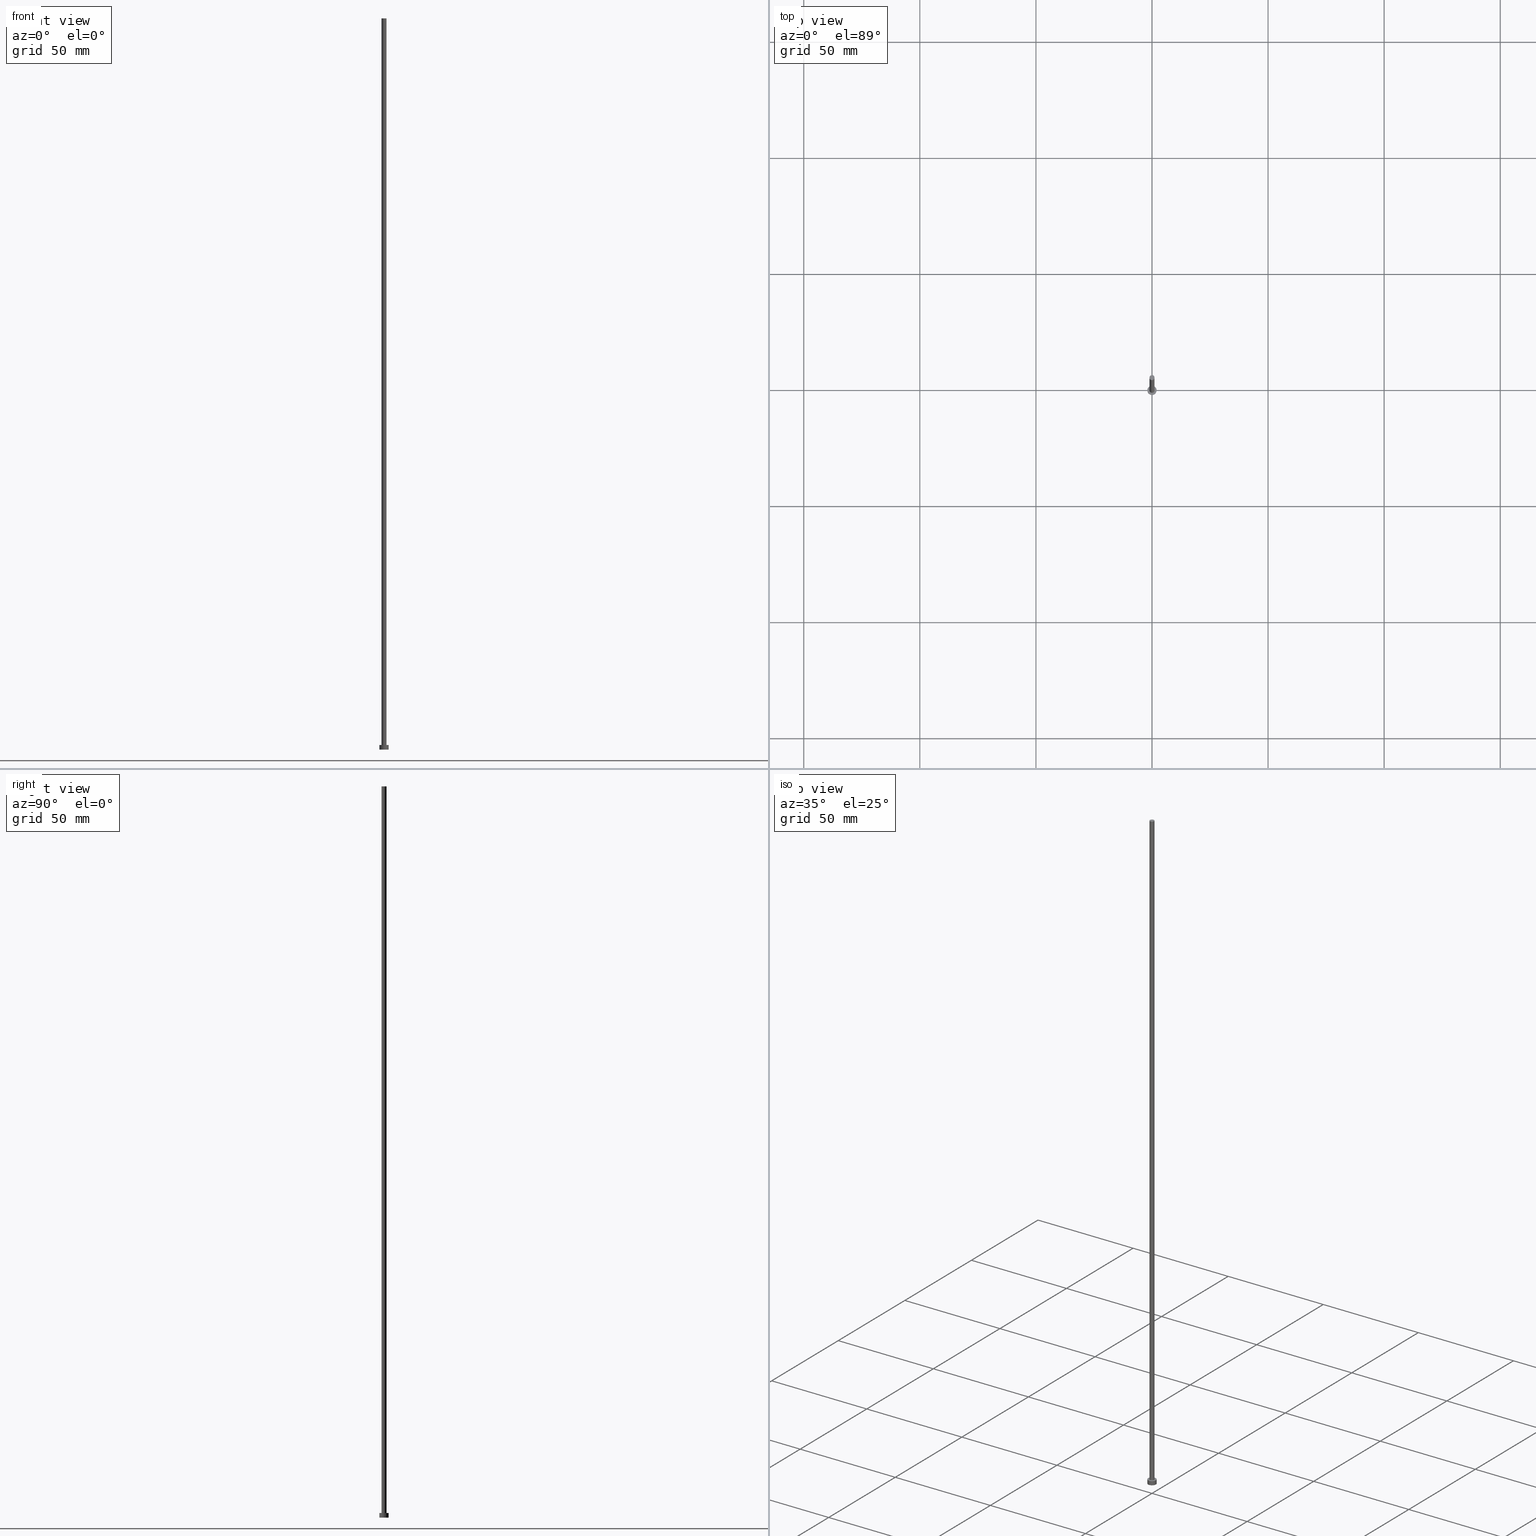
[diagram: canonical four-view strip — front | top / right | iso, engineering-drawing reading convention]
A machine part, canonical four-view strip (front | top / right | iso — engineering-drawing reading convention). The complete STEP part file that produces these views, byte-faithful:
ISO-10303-21;
HEADER;
FILE_DESCRIPTION (( 'STEP AP203' ),
    '1' );
FILE_NAME ('ce30.STEP',
    '2026-02-06T12:32:01',
    ( '' ),
    ( '' ),
    'SwSTEP 2.0',
    'SolidWorks 2019',
    '' );
FILE_SCHEMA (( 'CONFIG_CONTROL_DESIGN' ));
ENDSEC;

DATA;
#1 = DIRECTION ( 'NONE',  ( 1.000000000000000000, 0.000000000000000000, 0.000000000000000000 ) ) ;
#2 = AXIS2_PLACEMENT_3D ( 'NONE', #130, #197, #106 ) ;
#3 = PRODUCT_RELATED_PRODUCT_CATEGORY ( 'detail', '', ( #240 ) ) ;
#4 = EDGE_LOOP ( 'NONE', ( #21, #203, #194, #118 ) ) ;
#5 = ORIENTED_EDGE ( 'NONE', *, *, #211, .T. ) ;
#6 = EDGE_CURVE ( 'NONE', #222, #36, #214, .T. ) ;
#7 = DATE_AND_TIME ( #184, #189 ) ;
#8 = ORIENTED_EDGE ( 'NONE', *, *, #62, .F. ) ;
#9 = DATE_AND_TIME ( #107, #207 ) ;
#10 = ADVANCED_FACE ( 'NONE', ( #67 ), #86, .T. ) ;
#11 = APPROVAL_DATE_TIME ( #99, #237 ) ;
#12 = CARTESIAN_POINT ( 'NONE',  ( 0.000000000000000000, 0.000000000000000000, 0.000000000000000000 ) ) ;
#13 = CARTESIAN_POINT ( 'NONE',  ( 0.000000000000000000, 0.000000000000000000, 2.000000000000000000 ) ) ;
#14 = AXIS2_PLACEMENT_3D ( 'NONE', #75, #239, #55 ) ;
#15 = CARTESIAN_POINT ( 'NONE',  ( -2.000000000000000000, 0.000000000000000000, 0.000000000000000000 ) ) ;
#16 = FACE_BOUND ( 'NONE', #17, .T. ) ;
#17 = EDGE_LOOP ( 'NONE', ( #159, #134 ) ) ;
#18 = CARTESIAN_POINT ( 'NONE',  ( 0.000000000000000000, 0.000000000000000000, 2.000000000000000000 ) ) ;
#19 = DIRECTION ( 'NONE',  ( -0.000000000000000000, -0.000000000000000000, -1.000000000000000000 ) ) ;
#20 = VECTOR ( 'NONE', #182, 1000.000000000000000 ) ;
#21 = ORIENTED_EDGE ( 'NONE', *, *, #168, .F. ) ;
#22 = APPLICATION_CONTEXT ( 'configuration controlled 3d designs of mechanical parts and assemblies' ) ;
#23 = DIRECTION ( 'NONE',  ( -0.000000000000000000, -0.000000000000000000, -1.000000000000000000 ) ) ;
#24 = COORDINATED_UNIVERSAL_TIME_OFFSET ( 1, 0, .AHEAD. ) ;
#25 = ADVANCED_FACE ( 'NONE', ( #51 ), #154, .T. ) ;
#26 = CARTESIAN_POINT ( 'NONE',  ( -1.100000000000000089, 0.000000000000000000, 315.0000000000000000 ) ) ;
#27 = PERSON_AND_ORGANIZATION_ROLE ( 'creator' ) ;
#28 = CC_DESIGN_DATE_AND_TIME_ASSIGNMENT ( #183, #119, ( #78 ) ) ;
#29 = DIRECTION ( 'NONE',  ( -0.000000000000000000, -0.000000000000000000, -1.000000000000000000 ) ) ;
#30 = CIRCLE ( 'NONE', #146, 2.000000000000000000 ) ;
#31 = APPLICATION_CONTEXT ( 'configuration controlled 3d designs of mechanical parts and assemblies' ) ;
#32 = CIRCLE ( 'NONE', #46, 1.100000000000000089 ) ;
#33 = AXIS2_PLACEMENT_3D ( 'NONE', #185, #80, #149 ) ;
#34 = DIRECTION ( 'NONE',  ( -1.000000000000000000, 0.000000000000000000, 0.000000000000000000 ) ) ;
#35 = CARTESIAN_POINT ( 'NONE',  ( 1.100000000000000089, 1.347111479062088503E-16, 2.000000000000000000 ) ) ;
#36 = VERTEX_POINT ( 'NONE', #217 ) ;
#37 = CYLINDRICAL_SURFACE ( 'NONE', #14, 2.000000000000000000 ) ;
#38 = PERSON_AND_ORGANIZATION_ROLE ( 'classification_officer' ) ;
#39 = APPROVAL_PERSON_ORGANIZATION ( #103, #66, #233 ) ;
#40 = ORIENTED_EDGE ( 'NONE', *, *, #188, .F. ) ;
#41 = CIRCLE ( 'NONE', #140, 2.000000000000000000 ) ;
#42 = CC_DESIGN_PERSON_AND_ORGANIZATION_ASSIGNMENT ( #137, #38, ( #139 ) ) ;
#43 = DIRECTION ( 'NONE',  ( 0.000000000000000000, 0.000000000000000000, 1.000000000000000000 ) ) ;
#44 = CC_DESIGN_APPROVAL ( #66, ( #78 ) ) ;
#45 = ADVANCED_FACE ( 'NONE', ( #121 ), #100, .F. ) ;
#46 = AXIS2_PLACEMENT_3D ( 'NONE', #218, #175, #230 ) ;
#47 = AXIS2_PLACEMENT_3D ( 'NONE', #234, #129, #90 ) ;
#48 = MECHANICAL_CONTEXT ( 'NONE', #22, 'mechanical' ) ;
#49 = ORIENTED_EDGE ( 'NONE', *, *, #108, .T. ) ;
#50 = COORDINATED_UNIVERSAL_TIME_OFFSET ( 1, 0, .AHEAD. ) ;
#51 = FACE_OUTER_BOUND ( 'NONE', #114, .T. ) ;
#52 = CIRCLE ( 'NONE', #213, 2.000000000000000000 ) ;
#53 = COORDINATED_UNIVERSAL_TIME_OFFSET ( 1, 0, .AHEAD. ) ;
#54 = ORIENTED_EDGE ( 'NONE', *, *, #113, .T. ) ;
#55 = DIRECTION ( 'NONE',  ( -1.000000000000000000, 0.000000000000000000, 0.000000000000000000 ) ) ;
#56 = SHAPE_DEFINITION_REPRESENTATION ( #200, #147 ) ;
#57 = VECTOR ( 'NONE', #206, 1000.000000000000000 ) ;
#58 = CC_DESIGN_PERSON_AND_ORGANIZATION_ASSIGNMENT ( #225, #27, ( #133 ) ) ;
#59 = CYLINDRICAL_SURFACE ( 'NONE', #246, 1.100000000000000089 ) ;
#60 = CARTESIAN_POINT ( 'NONE',  ( -1.100000000000000089, 0.000000000000000000, 315.0000000000000000 ) ) ;
#61 = CIRCLE ( 'NONE', #150, 2.000000000000000000 ) ;
#62 = EDGE_CURVE ( 'NONE', #179, #36, #41, .T. ) ;
#63 = CIRCLE ( 'NONE', #226, 1.100000000000000089 ) ;
#64 = DIRECTION ( 'NONE',  ( 0.000000000000000000, 0.000000000000000000, 1.000000000000000000 ) ) ;
#65 = EDGE_CURVE ( 'NONE', #152, #74, #165, .T. ) ;
#66 = APPROVAL ( #153, 'NEUR�EN�' ) ;
#67 = FACE_OUTER_BOUND ( 'NONE', #221, .T. ) ;
#68 = CARTESIAN_POINT ( 'NONE',  ( 0.000000000000000000, 0.000000000000000000, 0.000000000000000000 ) ) ;
#69 = CARTESIAN_POINT ( 'NONE',  ( 0.000000000000000000, 0.000000000000000000, 315.0000000000000000 ) ) ;
#70 = CC_DESIGN_APPROVAL ( #82, ( #139 ) ) ;
#71 = DIRECTION ( 'NONE',  ( -1.000000000000000000, 0.000000000000000000, 0.000000000000000000 ) ) ;
#72 = EDGE_CURVE ( 'NONE', #172, #222, #30, .T. ) ;
#73 = AXIS2_PLACEMENT_3D ( 'NONE', #68, #64, #151 ) ;
#74 = VERTEX_POINT ( 'NONE', #145 ) ;
#75 = CARTESIAN_POINT ( 'NONE',  ( 0.000000000000000000, 0.000000000000000000, 2.000000000000000000 ) ) ;
#76 = ORIENTED_EDGE ( 'NONE', *, *, #120, .T. ) ;
#77 = CALENDAR_DATE ( 2026, 6, 2 ) ;
#78 = PRODUCT_DEFINITION ( 'NEZN�M�', '', #133, #85 ) ;
#79 = DATE_AND_TIME ( #177, #124 ) ;
#80 = DIRECTION ( 'NONE',  ( 0.000000000000000000, 0.000000000000000000, 1.000000000000000000 ) ) ;
#81 = DIRECTION ( 'NONE',  ( 1.000000000000000000, 0.000000000000000000, 0.000000000000000000 ) ) ;
#82 = APPROVAL ( #95, 'NEUR�EN�' ) ;
#83 = DIRECTION ( 'NONE',  ( 0.000000000000000000, 0.000000000000000000, 1.000000000000000000 ) ) ;
#84 = APPROVAL_PERSON_ORGANIZATION ( #141, #82, #115 ) ;
#85 = DESIGN_CONTEXT ( 'detailed design', #31, 'design' ) ;
#86 = CYLINDRICAL_SURFACE ( 'NONE', #190, 1.100000000000000089 ) ;
#87 = PLANE ( 'NONE',  #2 ) ;
#88 = ORIENTED_EDGE ( 'NONE', *, *, #65, .F. ) ;
#89 = UNCERTAINTY_MEASURE_WITH_UNIT (LENGTH_MEASURE( 1.000000000000000082E-05 ), #216, 'distance_accuracy_value', 'NONE');
#90 = DIRECTION ( 'NONE',  ( 1.000000000000000000, 0.000000000000000000, -0.000000000000000000 ) ) ;
#91 = ADVANCED_FACE ( 'NONE', ( #167 ), #59, .T. ) ;
#92 = CIRCLE ( 'NONE', #33, 1.100000000000000089 ) ;
#93 = PERSON_AND_ORGANIZATION ( #228, #110 ) ;
#94 = ORIENTED_EDGE ( 'NONE', *, *, #72, .T. ) ;
#95 = APPROVAL_STATUS ( 'not_yet_approved' ) ;
#96 = ORIENTED_EDGE ( 'NONE', *, *, #198, .T. ) ;
#97 = COORDINATED_UNIVERSAL_TIME_OFFSET ( 1, 0, .AHEAD. ) ;
#98 = DIRECTION ( 'NONE',  ( 0.000000000000000000, 0.000000000000000000, 1.000000000000000000 ) ) ;
#99 = DATE_AND_TIME ( #77, #155 ) ;
#100 = PLANE ( 'NONE',  #105 ) ;
#101 = DIRECTION ( 'NONE',  ( -1.000000000000000000, 0.000000000000000000, 0.000000000000000000 ) ) ;
#102 = LOCAL_TIME ( 13, 32, 1.000000000000000000, #97 ) ;
#103 = PERSON_AND_ORGANIZATION ( #228, #110 ) ;
#104 = FACE_OUTER_BOUND ( 'NONE', #199, .T. ) ;
#105 = AXIS2_PLACEMENT_3D ( 'NONE', #186, #144, #187 ) ;
#106 = DIRECTION ( 'NONE',  ( 1.000000000000000000, 0.000000000000000000, -0.000000000000000000 ) ) ;
#107 = CALENDAR_DATE ( 2026, 6, 2 ) ;
#108 = EDGE_CURVE ( 'NONE', #152, #241, #92, .T. ) ;
#109 = DIRECTION ( 'NONE',  ( -0.000000000000000000, -0.000000000000000000, -1.000000000000000000 ) ) ;
#110 = ORGANIZATION ( 'NEUR�EN�', 'NEUR�EN�', '' ) ;
#111 = EDGE_LOOP ( 'NONE', ( #232, #76, #96, #88 ) ) ;
#112 = ADVANCED_FACE ( 'NONE', ( #243 ), #37, .T. ) ;
#113 = EDGE_CURVE ( 'NONE', #172, #179, #117, .T. ) ;
#114 = EDGE_LOOP ( 'NONE', ( #49, #126 ) ) ;
#115 = APPROVAL_ROLE ( '' ) ;
#116 = CIRCLE ( 'NONE', #162, 1.100000000000000089 ) ;
#117 = LINE ( 'NONE', #202, #170 ) ;
#118 = ORIENTED_EDGE ( 'NONE', *, *, #113, .F. ) ;
#119 = DATE_TIME_ROLE ( 'creation_date' ) ;
#120 = EDGE_CURVE ( 'NONE', #241, #196, #181, .T. ) ;
#121 = FACE_OUTER_BOUND ( 'NONE', #220, .T. ) ;
#122 =( GEOMETRIC_REPRESENTATION_CONTEXT ( 3 ) GLOBAL_UNCERTAINTY_ASSIGNED_CONTEXT ( ( #89 ) ) GLOBAL_UNIT_ASSIGNED_CONTEXT ( ( #216, #128, #191 ) ) REPRESENTATION_CONTEXT ( 'NONE', 'WORKASPACE' ) );
#123 = DIRECTION ( 'NONE',  ( 0.000000000000000000, 0.000000000000000000, 1.000000000000000000 ) ) ;
#124 = LOCAL_TIME ( 13, 32, 1.000000000000000000, #53 ) ;
#125 = DIRECTION ( 'NONE',  ( 1.000000000000000000, 0.000000000000000000, 0.000000000000000000 ) ) ;
#126 = ORIENTED_EDGE ( 'NONE', *, *, #219, .T. ) ;
#127 = APPROVAL_PERSON_ORGANIZATION ( #242, #237, #143 ) ;
#128 =( NAMED_UNIT ( * ) PLANE_ANGLE_UNIT ( ) SI_UNIT ( $, .RADIAN. ) );
#129 = DIRECTION ( 'NONE',  ( 0.000000000000000000, 0.000000000000000000, 1.000000000000000000 ) ) ;
#130 = CARTESIAN_POINT ( 'NONE',  ( 0.000000000000000000, 0.000000000000000000, 2.000000000000000000 ) ) ;
#131 = EDGE_LOOP ( 'NONE', ( #94, #176 ) ) ;
#132 = CC_DESIGN_PERSON_AND_ORGANIZATION_ASSIGNMENT ( #223, #204, ( #78 ) ) ;
#133 = PRODUCT_DEFINITION_FORMATION_WITH_SPECIFIED_SOURCE ( 'LIBOVOLN�', '', #240, .NOT_KNOWN. ) ;
#134 = ORIENTED_EDGE ( 'NONE', *, *, #198, .F. ) ;
#135 = SECURITY_CLASSIFICATION_LEVEL ( 'unclassified' ) ;
#136 = ORIENTED_EDGE ( 'NONE', *, *, #6, .F. ) ;
#137 = PERSON_AND_ORGANIZATION ( #228, #110 ) ;
#138 = COORDINATED_UNIVERSAL_TIME_OFFSET ( 1, 0, .AHEAD. ) ;
#139 = SECURITY_CLASSIFICATION ( '', '', #135 ) ;
#140 = AXIS2_PLACEMENT_3D ( 'NONE', #12, #43, #249 ) ;
#141 = PERSON_AND_ORGANIZATION ( #228, #110 ) ;
#142 = MANIFOLD_SOLID_BREP ( 'P�idat vysunut�m3', #156 ) ;
#143 = APPROVAL_ROLE ( '' ) ;
#144 = DIRECTION ( 'NONE',  ( 0.000000000000000000, 0.000000000000000000, 1.000000000000000000 ) ) ;
#145 = CARTESIAN_POINT ( 'NONE',  ( -1.100000000000000089, 0.000000000000000000, 2.000000000000000000 ) ) ;
#146 = AXIS2_PLACEMENT_3D ( 'NONE', #13, #123, #81 ) ;
#147 = ADVANCED_BREP_SHAPE_REPRESENTATION ( 'ce30', ( #142, #73 ), #122 ) ;
#148 = DIRECTION ( 'NONE',  ( 0.000000000000000000, 0.000000000000000000, 1.000000000000000000 ) ) ;
#149 = DIRECTION ( 'NONE',  ( 1.000000000000000000, 0.000000000000000000, 0.000000000000000000 ) ) ;
#150 = AXIS2_PLACEMENT_3D ( 'NONE', #244, #98, #248 ) ;
#151 = DIRECTION ( 'NONE',  ( 1.000000000000000000, 0.000000000000000000, 0.000000000000000000 ) ) ;
#152 = VERTEX_POINT ( 'NONE', #26 ) ;
#153 = APPROVAL_STATUS ( 'not_yet_approved' ) ;
#154 = PLANE ( 'NONE',  #47 ) ;
#155 = LOCAL_TIME ( 13, 32, 1.000000000000000000, #24 ) ;
#156 = CLOSED_SHELL ( 'NONE', ( #91, #112, #209, #247, #45, #10, #25 ) ) ;
#157 = CARTESIAN_POINT ( 'NONE',  ( 0.000000000000000000, 0.000000000000000000, 315.0000000000000000 ) ) ;
#158 = ORIENTED_EDGE ( 'NONE', *, *, #108, .F. ) ;
#159 = ORIENTED_EDGE ( 'NONE', *, *, #211, .F. ) ;
#160 = CALENDAR_DATE ( 2026, 6, 2 ) ;
#161 = APPROVAL_DATE_TIME ( #9, #66 ) ;
#162 = AXIS2_PLACEMENT_3D ( 'NONE', #157, #83, #125 ) ;
#163 = CARTESIAN_POINT ( 'NONE',  ( 1.100000000000000089, 1.347111479062088503E-16, 315.0000000000000000 ) ) ;
#164 = PERSON_AND_ORGANIZATION_ROLE ( 'design_supplier' ) ;
#165 = LINE ( 'NONE', #60, #57 ) ;
#166 = CC_DESIGN_PERSON_AND_ORGANIZATION_ASSIGNMENT ( #173, #254, ( #240 ) ) ;
#167 = FACE_OUTER_BOUND ( 'NONE', #111, .T. ) ;
#168 = EDGE_CURVE ( 'NONE', #222, #172, #61, .T. ) ;
#169 = CARTESIAN_POINT ( 'NONE',  ( 2.000000000000000000, 2.449293598294706414E-16, 2.000000000000000000 ) ) ;
#170 = VECTOR ( 'NONE', #23, 1000.000000000000000 ) ;
#171 = DIRECTION ( 'NONE',  ( 0.000000000000000000, 0.000000000000000000, 1.000000000000000000 ) ) ;
#172 = VERTEX_POINT ( 'NONE', #227 ) ;
#173 = PERSON_AND_ORGANIZATION ( #228, #110 ) ;
#174 = CARTESIAN_POINT ( 'NONE',  ( 2.000000000000000000, 2.449293598294706414E-16, 2.000000000000000000 ) ) ;
#175 = DIRECTION ( 'NONE',  ( 0.000000000000000000, 0.000000000000000000, 1.000000000000000000 ) ) ;
#176 = ORIENTED_EDGE ( 'NONE', *, *, #168, .T. ) ;
#177 = CALENDAR_DATE ( 2026, 6, 2 ) ;
#178 = CC_DESIGN_APPROVAL ( #237, ( #133 ) ) ;
#179 = VERTEX_POINT ( 'NONE', #15 ) ;
#180 = APPROVAL_DATE_TIME ( #7, #82 ) ;
#181 = LINE ( 'NONE', #163, #20 ) ;
#182 = DIRECTION ( 'NONE',  ( -0.000000000000000000, -0.000000000000000000, -1.000000000000000000 ) ) ;
#183 = DATE_AND_TIME ( #160, #102 ) ;
#184 = CALENDAR_DATE ( 2026, 6, 2 ) ;
#185 = CARTESIAN_POINT ( 'NONE',  ( 0.000000000000000000, 0.000000000000000000, 315.0000000000000000 ) ) ;
#186 = CARTESIAN_POINT ( 'NONE',  ( 0.000000000000000000, 0.000000000000000000, 0.000000000000000000 ) ) ;
#187 = DIRECTION ( 'NONE',  ( 1.000000000000000000, 0.000000000000000000, -0.000000000000000000 ) ) ;
#188 = EDGE_CURVE ( 'NONE', #36, #179, #52, .T. ) ;
#189 = LOCAL_TIME ( 13, 32, 1.000000000000000000, #138 ) ;
#190 = AXIS2_PLACEMENT_3D ( 'NONE', #69, #19, #34 ) ;
#191 =( NAMED_UNIT ( * ) SI_UNIT ( $, .STERADIAN. ) SOLID_ANGLE_UNIT ( ) );
#192 = CYLINDRICAL_SURFACE ( 'NONE', #193, 2.000000000000000000 ) ;
#193 = AXIS2_PLACEMENT_3D ( 'NONE', #212, #109, #71 ) ;
#194 = ORIENTED_EDGE ( 'NONE', *, *, #188, .T. ) ;
#195 = DIRECTION ( 'NONE',  ( 1.000000000000000000, 0.000000000000000000, 0.000000000000000000 ) ) ;
#196 = VERTEX_POINT ( 'NONE', #35 ) ;
#197 = DIRECTION ( 'NONE',  ( 0.000000000000000000, 0.000000000000000000, 1.000000000000000000 ) ) ;
#198 = EDGE_CURVE ( 'NONE', #196, #74, #32, .T. ) ;
#199 = EDGE_LOOP ( 'NONE', ( #136, #236, #54, #224 ) ) ;
#200 = PRODUCT_DEFINITION_SHAPE ( 'NONE', 'NONE',  #78 ) ;
#201 = ORIENTED_EDGE ( 'NONE', *, *, #65, .T. ) ;
#202 = CARTESIAN_POINT ( 'NONE',  ( -2.000000000000000000, 0.000000000000000000, 2.000000000000000000 ) ) ;
#203 = ORIENTED_EDGE ( 'NONE', *, *, #6, .T. ) ;
#204 = PERSON_AND_ORGANIZATION_ROLE ( 'creator' ) ;
#205 = APPROVAL_STATUS ( 'not_yet_approved' ) ;
#206 = DIRECTION ( 'NONE',  ( -0.000000000000000000, -0.000000000000000000, -1.000000000000000000 ) ) ;
#207 = LOCAL_TIME ( 13, 32, 1.000000000000000000, #50 ) ;
#208 = CARTESIAN_POINT ( 'NONE',  ( 0.000000000000000000, 0.000000000000000000, 315.0000000000000000 ) ) ;
#209 = ADVANCED_FACE ( 'NONE', ( #104 ), #192, .T. ) ;
#210 = APPLICATION_PROTOCOL_DEFINITION ( 'international standard', 'config_control_design', 1994, #31 ) ;
#211 = EDGE_CURVE ( 'NONE', #74, #196, #63, .T. ) ;
#212 = CARTESIAN_POINT ( 'NONE',  ( 0.000000000000000000, 0.000000000000000000, 2.000000000000000000 ) ) ;
#213 = AXIS2_PLACEMENT_3D ( 'NONE', #250, #148, #195 ) ;
#214 = LINE ( 'NONE', #174, #215 ) ;
#215 = VECTOR ( 'NONE', #255, 1000.000000000000000 ) ;
#216 =( LENGTH_UNIT ( ) NAMED_UNIT ( * ) SI_UNIT ( .MILLI., .METRE. ) );
#217 = CARTESIAN_POINT ( 'NONE',  ( 2.000000000000000000, 2.449293598294706414E-16, 0.000000000000000000 ) ) ;
#218 = CARTESIAN_POINT ( 'NONE',  ( 0.000000000000000000, 0.000000000000000000, 2.000000000000000000 ) ) ;
#219 = EDGE_CURVE ( 'NONE', #241, #152, #116, .T. ) ;
#220 = EDGE_LOOP ( 'NONE', ( #8, #40 ) ) ;
#221 = EDGE_LOOP ( 'NONE', ( #253, #158, #201, #5 ) ) ;
#222 = VERTEX_POINT ( 'NONE', #169 ) ;
#223 = PERSON_AND_ORGANIZATION ( #228, #110 ) ;
#224 = ORIENTED_EDGE ( 'NONE', *, *, #62, .T. ) ;
#225 = PERSON_AND_ORGANIZATION ( #228, #110 ) ;
#226 = AXIS2_PLACEMENT_3D ( 'NONE', #18, #171, #1 ) ;
#227 = CARTESIAN_POINT ( 'NONE',  ( -2.000000000000000000, 0.000000000000000000, 2.000000000000000000 ) ) ;
#228 = PERSON ( 'NEUR�EN�', 'NEUR�EN�', 'NEUR�EN�', ('NEUR�EN�'), ('NEUR�EN�'), ('NEUR�EN�') ) ;
#229 = CC_DESIGN_PERSON_AND_ORGANIZATION_ASSIGNMENT ( #93, #164, ( #133 ) ) ;
#230 = DIRECTION ( 'NONE',  ( 1.000000000000000000, 0.000000000000000000, 0.000000000000000000 ) ) ;
#231 = APPLICATION_PROTOCOL_DEFINITION ( 'international standard', 'config_control_design', 1994, #22 ) ;
#232 = ORIENTED_EDGE ( 'NONE', *, *, #219, .F. ) ;
#233 = APPROVAL_ROLE ( '' ) ;
#234 = CARTESIAN_POINT ( 'NONE',  ( 0.000000000000000000, 0.000000000000000000, 315.0000000000000000 ) ) ;
#235 = CARTESIAN_POINT ( 'NONE',  ( 1.100000000000000089, 1.347111479062088503E-16, 315.0000000000000000 ) ) ;
#236 = ORIENTED_EDGE ( 'NONE', *, *, #72, .F. ) ;
#237 = APPROVAL ( #205, 'NEUR�EN�' ) ;
#238 = CC_DESIGN_SECURITY_CLASSIFICATION ( #139, ( #133 ) ) ;
#239 = DIRECTION ( 'NONE',  ( -0.000000000000000000, -0.000000000000000000, -1.000000000000000000 ) ) ;
#240 = PRODUCT ( 'ce30', 'ce30', '', ( #48 ) ) ;
#241 = VERTEX_POINT ( 'NONE', #235 ) ;
#242 = PERSON_AND_ORGANIZATION ( #228, #110 ) ;
#243 = FACE_OUTER_BOUND ( 'NONE', #4, .T. ) ;
#244 = CARTESIAN_POINT ( 'NONE',  ( 0.000000000000000000, 0.000000000000000000, 2.000000000000000000 ) ) ;
#245 = DATE_TIME_ROLE ( 'classification_date' ) ;
#246 = AXIS2_PLACEMENT_3D ( 'NONE', #208, #29, #101 ) ;
#247 = ADVANCED_FACE ( 'NONE', ( #16, #252 ), #87, .T. ) ;
#248 = DIRECTION ( 'NONE',  ( 1.000000000000000000, 0.000000000000000000, 0.000000000000000000 ) ) ;
#249 = DIRECTION ( 'NONE',  ( 1.000000000000000000, 0.000000000000000000, 0.000000000000000000 ) ) ;
#250 = CARTESIAN_POINT ( 'NONE',  ( 0.000000000000000000, 0.000000000000000000, 0.000000000000000000 ) ) ;
#251 = CC_DESIGN_DATE_AND_TIME_ASSIGNMENT ( #79, #245, ( #139 ) ) ;
#252 = FACE_OUTER_BOUND ( 'NONE', #131, .T. ) ;
#253 = ORIENTED_EDGE ( 'NONE', *, *, #120, .F. ) ;
#254 = PERSON_AND_ORGANIZATION_ROLE ( 'design_owner' ) ;
#255 = DIRECTION ( 'NONE',  ( -0.000000000000000000, -0.000000000000000000, -1.000000000000000000 ) ) ;
ENDSEC;
END-ISO-10303-21;
